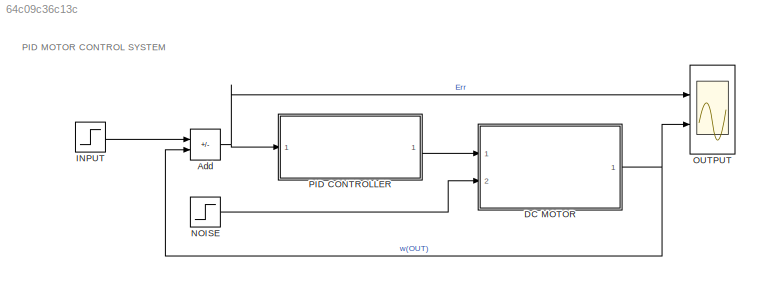
MODEL slx_64c09c36c13c
KIND model
CONFIG AbsTol = auto
CONFIG EnableMultiTasking = off
CONFIG FixedStep = auto
CONFIG MaxStep = auto
CONFIG MinStep = auto
CONFIG PreLoadFcn = vars
CONFIG RelTol = 1e-3
CONFIG SampleTimeConstraint = Unconstrained
CONFIG SolverName = VariableStepAuto
CONFIG StartTime = 0.0
CONFIG StopTime = 10
BLOCK [Sum] Add
  IconShape = rectangular
  Inputs = +-
  Ports = [2, 1]
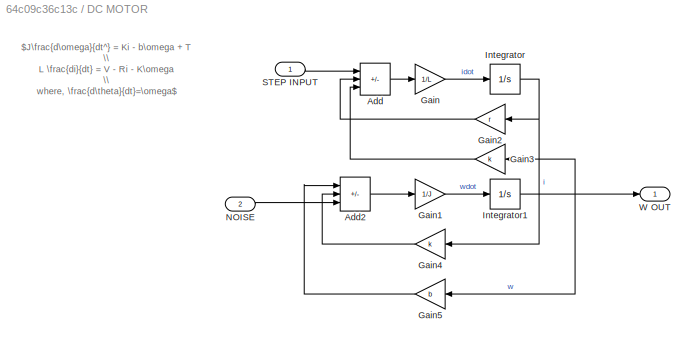
BLOCK [SubSystem] DC MOTOR
  Ports = [2, 1]
  RequestExecContextInheritance = off
BLOCK [Sum] DC MOTOR/Add
  IconShape = rectangular
  Inputs = +--
  Ports = [3, 1]
BLOCK [Sum] DC MOTOR/Add2
  IconShape = rectangular
  Inputs = -++
  Ports = [3, 1]
BLOCK [Gain] DC MOTOR/Gain
  Gain = 1/L
BLOCK [Gain] DC MOTOR/Gain1
  Gain = 1/J
BLOCK [Gain] DC MOTOR/Gain2
  Gain = r
BLOCK [Gain] DC MOTOR/Gain3
  Gain = k
BLOCK [Gain] DC MOTOR/Gain4
  Gain = k
BLOCK [Gain] DC MOTOR/Gain5
  Gain = b
BLOCK [Integrator] DC MOTOR/Integrator
  Ports = [1, 1]
BLOCK [Integrator] DC MOTOR/Integrator1
  Ports = [1, 1]
BLOCK [Inport] DC MOTOR/NOISE
  Port = 2
BLOCK [Inport] DC MOTOR/STEP INPUT
BLOCK [Outport] DC MOTOR/W OUT
BLOCK [Step] INPUT
  After = 40
  SampleTime = 0
BLOCK [Step] NOISE
  After = -0.01
  SampleTime = 0
  Time = 2
BLOCK [Scope] OUTPUT
  Floating = off
  NumInputPorts = 2
  Ports = [2]
  ScopeSpecificationString = Simulink.scopes.TimeScopeBlockCfg('CurrentConfiguration', extmgr.ConfigurationSet(extmgr.Configuration('Core','General UI',true),extmgr.Configuration('Core','Source UI',true),extmgr.Configuration('Sources','WiredSimulink',true),extmgr.Configuration('Visuals','Time Domain',true,'SerializedDisplays',{struct('MinYLimReal','-11.77142','MaxYLimReal','45.75238','YLabelReal','','MinYLimMag','0.00000','Ma...<+1974ch>
BLOCK [ModelReference] PID CONTROLLER
  ModelNameDialog = PID_REFERENCE_MODEL
  ModelReferenceVersion = 1.15
  Ports = [1, 1]
  UsingDefaultArgumentValue = 0,0,0
  kd = 170.553062
  ki = 289087.103
  kp = 14418.122
ANNOTATION (root): PID MOTOR CONTROL SYSTEM
ANNOTATION DC MOTOR: $J\frac{d\omega}{dt^} = Ki - b\omega + T \\ L \frac{di}{dt} = V - Ri - K\omega \\ where, \frac{d\theta}{dt}=\omega$
NET Add:1 -> OUTPUT:1, PID CONTROLLER:1
LINE DC MOTOR/Add2:1 -> DC MOTOR/Gain1:1
LINE DC MOTOR/Add:1 -> DC MOTOR/Gain:1
LINE DC MOTOR/Gain1:1 -> DC MOTOR/Integrator1:1
LINE DC MOTOR/Gain2:1 -> DC MOTOR/Add:2
LINE DC MOTOR/Gain3:1 -> DC MOTOR/Add:3
LINE DC MOTOR/Gain4:1 -> DC MOTOR/Add2:2
LINE DC MOTOR/Gain5:1 -> DC MOTOR/Add2:1
LINE DC MOTOR/Gain:1 -> DC MOTOR/Integrator:1
NET DC MOTOR/Integrator1:1 -> DC MOTOR/Gain3:1, DC MOTOR/Gain5:1, DC MOTOR/W OUT:1
NET DC MOTOR/Integrator:1 -> DC MOTOR/Gain2:1, DC MOTOR/Gain4:1
LINE DC MOTOR/NOISE:1 -> DC MOTOR/Add2:3
LINE DC MOTOR/STEP INPUT:1 -> DC MOTOR/Add:1
NET DC MOTOR:1 -> Add:2, OUTPUT:2
LINE INPUT:1 -> Add:1
LINE NOISE:1 -> DC MOTOR:2
LINE PID CONTROLLER:1 -> DC MOTOR:1
note: NET lines group one-source signal fan-out (src -> all destinations, sorted); 1:1 wires keep LINE
